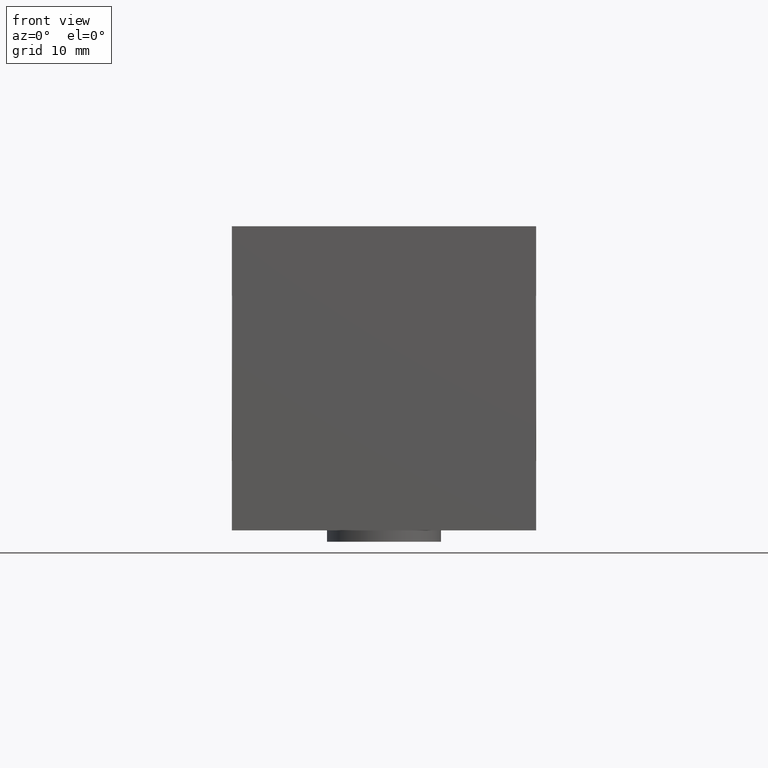
[diagram: clean part render]
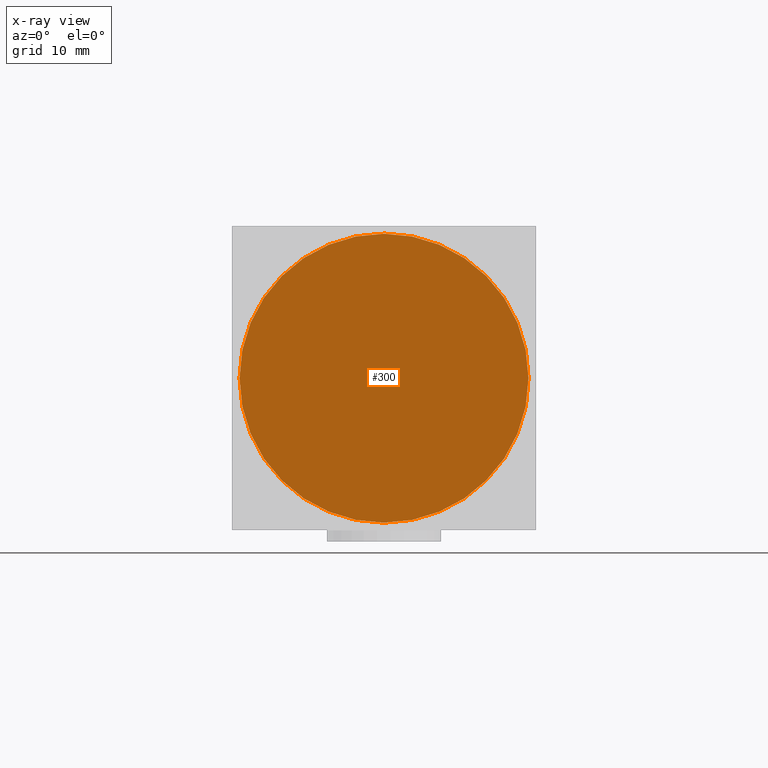
[diagram: x-ray — body ghosted, one internal face saturated and labeled with its STEP entity id]
A machine part, front view, then the same camera in x-ray: the body is ghosted and one INTERNAL B-rep face — a face not visible from any outside direction — is saturated and labeled: STEP entity #300.
In plain terms, the highlighted planar face has unit normal (0, 1, 0).
Its self-contained STEP definition (entity closure, byte-faithful):
#300 = ADVANCED_FACE( '', ( #656 ), #657, .F. );
#656 = FACE_OUTER_BOUND( '', #1101, .T. );
#657 = PLANE( '', #1102 );
#1101 = EDGE_LOOP( '', ( #1734 ) );
#1102 = AXIS2_PLACEMENT_3D( '', #1735, #1736, #1737 );
#1734 = ORIENTED_EDGE( '', *, *, #2612, .F. );
#1735 = CARTESIAN_POINT( '', ( 0.000000000000000, 0.000000000000000, 0.000000000000000 ) );
#1736 = DIRECTION( '', ( 1.00000000000000, 0.000000000000000, -0.000000000000000 ) );
#1737 = DIRECTION( '', ( -0.000000000000000, 0.000000000000000, -1.00000000000000 ) );
#2612 = EDGE_CURVE( '', #3134, #3134, #3135, .T. );
#3134 = VERTEX_POINT( '', #3800 );
#3135 = CIRCLE( '', #3801, 19.0000000000000 );
#3800 = CARTESIAN_POINT( '', ( 0.000000000000000, 0.000000000000000, -19.0000000000000 ) );
#3801 = AXIS2_PLACEMENT_3D( '', #4393, #4394, #4395 );
#4393 = CARTESIAN_POINT( '', ( 0.000000000000000, 0.000000000000000, 0.000000000000000 ) );
#4394 = DIRECTION( '', ( 1.00000000000000, 0.000000000000000, -0.000000000000000 ) );
#4395 = DIRECTION( '', ( -0.000000000000000, 0.000000000000000, -1.00000000000000 ) );